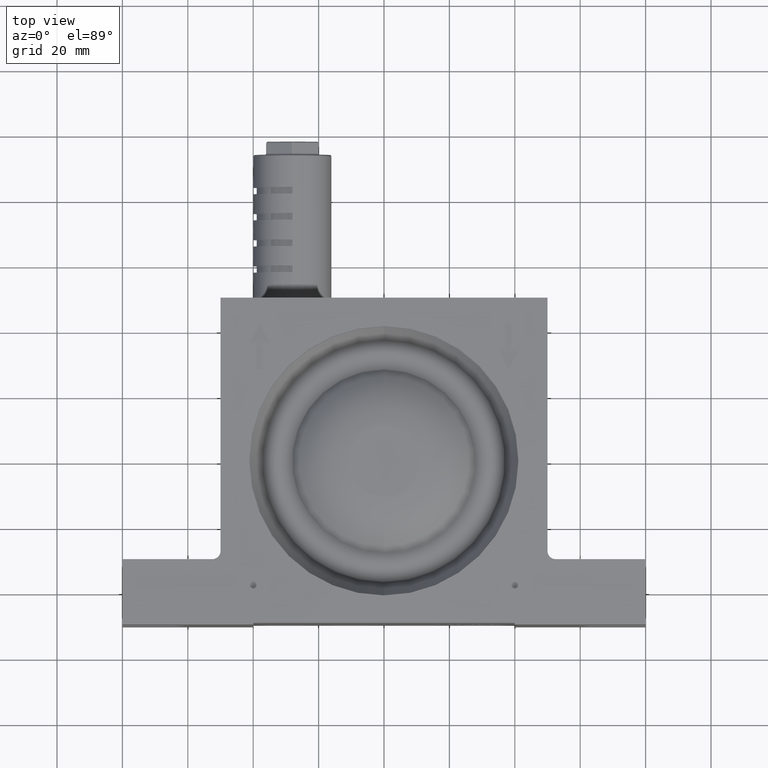
[diagram: clean part render]
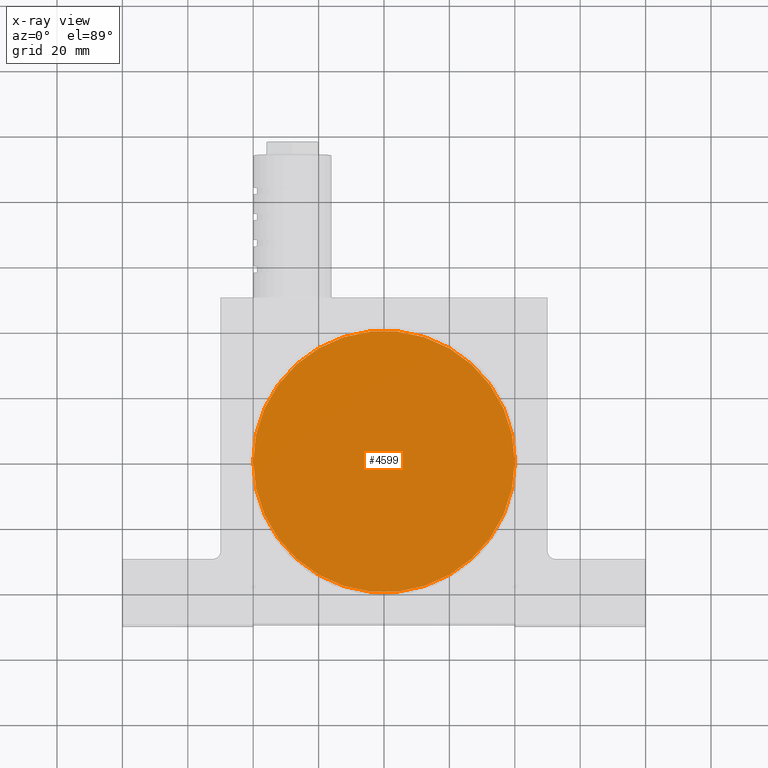
[diagram: x-ray — body ghosted, one internal face saturated and labeled with its STEP entity id]
A machine part, top view, then the same camera in x-ray: the body is ghosted and one INTERNAL B-rep face — a face not visible from any outside direction — is saturated and labeled: STEP entity #4599.
In plain terms, the highlighted planar face has unit normal (0, 0, 1).
Its self-contained STEP definition (entity closure, byte-faithful):
#52 = PLANE ( 'NONE',  #6445 ) ;
#317 = DIRECTION ( 'NONE',  ( 0.0000000000000000000, 0.0000000000000000000, 1.000000000000000000 ) ) ;
#377 = AXIS2_PLACEMENT_3D ( 'NONE', #5162, #317, #4092 ) ;
#934 = CARTESIAN_POINT ( 'NONE',  ( 0.0000000000000000000, 0.0000000000000000000, 15.00000000000000000 ) ) ;
#946 = AXIS2_PLACEMENT_3D ( 'NONE', #934, #5771, #6913 ) ;
#1172 = FACE_OUTER_BOUND ( 'NONE', #5449, .T. ) ;
#1210 = CARTESIAN_POINT ( 'NONE',  ( -40.00000000000000000, 4.898587196589413000E-015, 15.00000000000000000 ) ) ;
#1231 = EDGE_CURVE ( 'NONE', #1550, #5164, #6815, .T. ) ;
#1550 = VERTEX_POINT ( 'NONE', #3024 ) ;
#1697 = ORIENTED_EDGE ( 'NONE', *, *, #1231, .T. ) ;
#2202 = EDGE_CURVE ( 'NONE', #5164, #1550, #6879, .T. ) ;
#3024 = CARTESIAN_POINT ( 'NONE',  ( 40.00000000000000000, 0.0000000000000000000, 15.00000000000000000 ) ) ;
#3445 = DIRECTION ( 'NONE',  ( 0.0000000000000000000, 0.0000000000000000000, 1.000000000000000000 ) ) ;
#4092 = DIRECTION ( 'NONE',  ( 1.000000000000000000, 0.0000000000000000000, 0.0000000000000000000 ) ) ;
#4386 = CARTESIAN_POINT ( 'NONE',  ( 0.0000000000000000000, 2.877919977996279900E-015, 15.00000000000000000 ) ) ;
#4459 = ORIENTED_EDGE ( 'NONE', *, *, #2202, .T. ) ;
#4582 = DIRECTION ( 'NONE',  ( 1.000000000000000000, 0.0000000000000000000, 0.0000000000000000000 ) ) ;
#4599 = ADVANCED_FACE ( 'NONE', ( #1172 ), #52, .T. ) ;
#5162 = CARTESIAN_POINT ( 'NONE',  ( 0.0000000000000000000, 0.0000000000000000000, 15.00000000000000000 ) ) ;
#5164 = VERTEX_POINT ( 'NONE', #1210 ) ;
#5449 = EDGE_LOOP ( 'NONE', ( #1697, #4459 ) ) ;
#5771 = DIRECTION ( 'NONE',  ( 0.0000000000000000000, 0.0000000000000000000, 1.000000000000000000 ) ) ;
#6445 = AXIS2_PLACEMENT_3D ( 'NONE', #4386, #3445, #4582 ) ;
#6815 = CIRCLE ( 'NONE', #946, 40.00000000000000000 ) ;
#6879 = CIRCLE ( 'NONE', #377, 40.00000000000000000 ) ;
#6913 = DIRECTION ( 'NONE',  ( 1.000000000000000000, 0.0000000000000000000, 0.0000000000000000000 ) ) ;